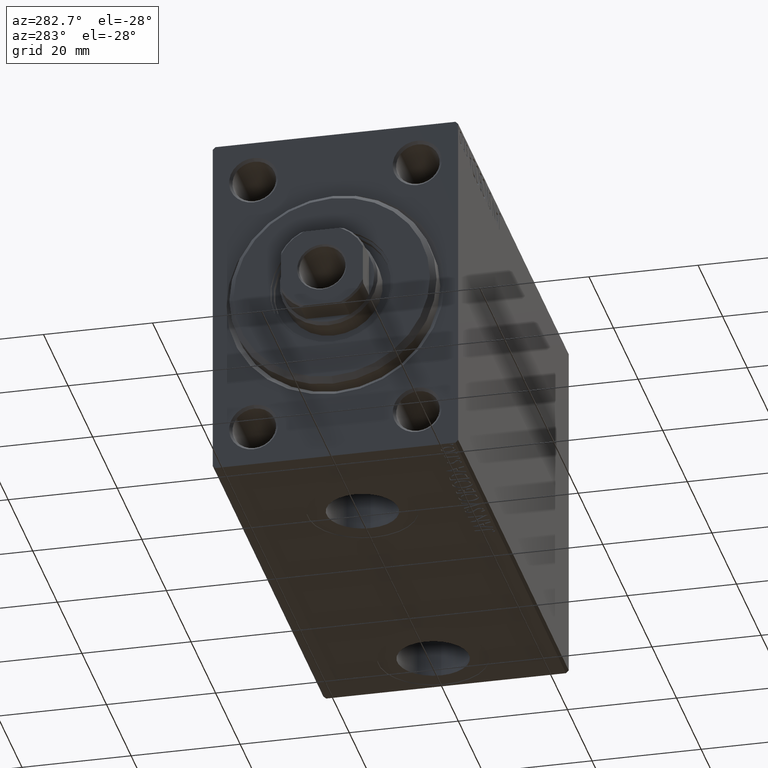
[diagram: clean part render]
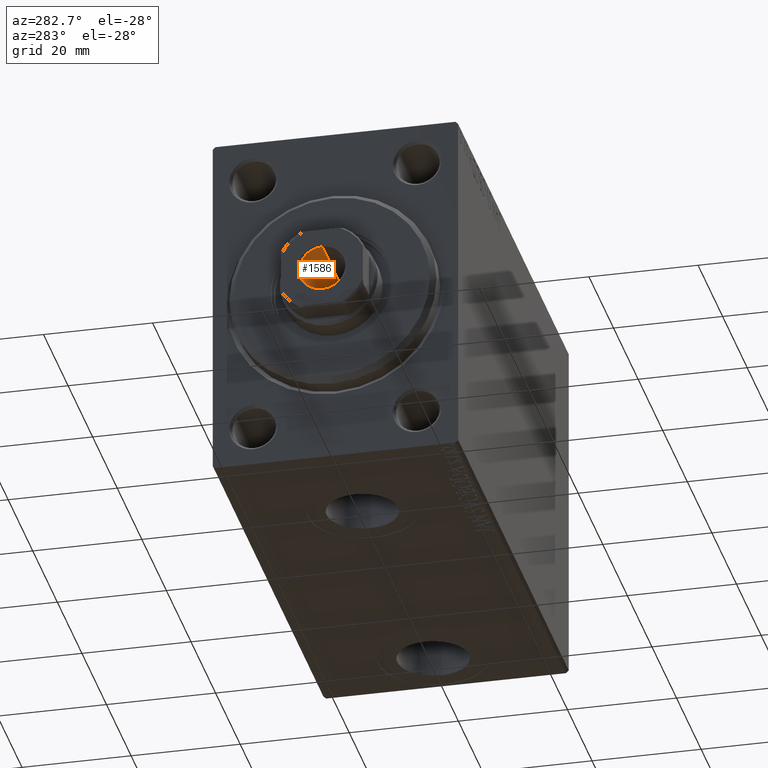
[diagram: same view with one face highlighted and labeled with its STEP entity id]
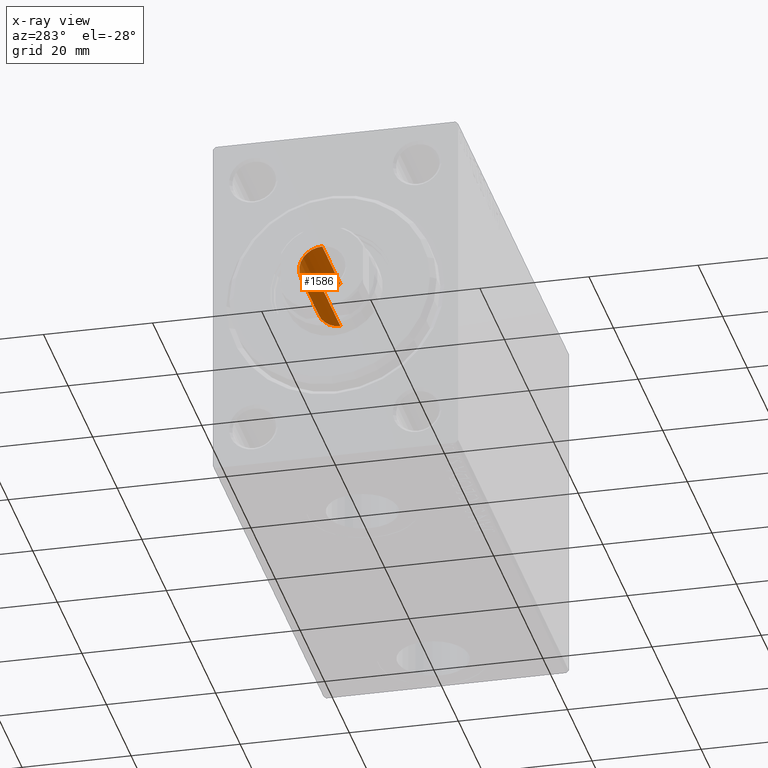
[diagram: x-ray of the same camera — body ghosted, the highlighted face saturated]
A machine part, auxiliary view. The second image highlights one B-rep face of the part: STEP entity #1586.
The next image is the same camera in x-ray: the body ghosted, the highlighted face saturated — about 2% of this face is hidden behind the body in this view.
In plain terms, the highlighted cylindrical surface (edge-blend (fillet) strip) has radius 4.25 mm, axis along (-1, 0, 0).
Its self-contained STEP definition (entity closure, byte-faithful):
#1586 = ADVANCED_FACE ( 'NONE', ( #25253 ), #42762, .F. ) ;
#3167 = ORIENTED_EDGE ( 'NONE', *, *, #31401, .F. ) ;
#3942 = EDGE_CURVE ( 'NONE', #10553, #25044, #42862, .T. ) ;
#5468 = AXIS2_PLACEMENT_3D ( 'NONE', #13513, #9370, #10060 ) ;
#6206 = CIRCLE ( 'NONE', #5468, 4.249999999999997335 ) ;
#7504 = CARTESIAN_POINT ( 'NONE',  ( 0.000000000000000000, 0.000000000000000000, 95.00000000000000000 ) ) ;
#8772 = DIRECTION ( 'NONE',  ( 1.000000000000000000, 0.000000000000000000, 0.000000000000000000 ) ) ;
#9370 = DIRECTION ( 'NONE',  ( 0.000000000000000000, 0.000000000000000000, 1.000000000000000000 ) ) ;
#10060 = DIRECTION ( 'NONE',  ( 1.000000000000000000, 0.000000000000000000, 0.000000000000000000 ) ) ;
#10553 = VERTEX_POINT ( 'NONE', #33059 ) ;
#11212 = CARTESIAN_POINT ( 'NONE',  ( -4.249999999999996447, 5.204748896376247741E-16, 80.00000000000000000 ) ) ;
#11991 = VECTOR ( 'NONE', #17500, 1000.000000000000000 ) ;
#12006 = CARTESIAN_POINT ( 'NONE',  ( 0.000000000000000000, 0.000000000000000000, 80.00000000000000000 ) ) ;
#13513 = CARTESIAN_POINT ( 'NONE',  ( 0.000000000000000000, 0.000000000000000000, 94.69999999999998863 ) ) ;
#13673 = EDGE_LOOP ( 'NONE', ( #21616, #3167, #35822, #36193 ) ) ;
#16842 = VERTEX_POINT ( 'NONE', #33622 ) ;
#17500 = DIRECTION ( 'NONE',  ( -0.000000000000000000, -0.000000000000000000, 1.000000000000000000 ) ) ;
#17999 = DIRECTION ( 'NONE',  ( -0.000000000000000000, -0.000000000000000000, 1.000000000000000000 ) ) ;
#20425 = VECTOR ( 'NONE', #17999, 1000.000000000000000 ) ;
#21616 = ORIENTED_EDGE ( 'NONE', *, *, #24426, .F. ) ;
#24426 = EDGE_CURVE ( 'NONE', #26416, #16842, #38906, .T. ) ;
#25044 = VERTEX_POINT ( 'NONE', #28191 ) ;
#25253 = FACE_OUTER_BOUND ( 'NONE', #13673, .T. ) ;
#26416 = VERTEX_POINT ( 'NONE', #11212 ) ;
#28191 = CARTESIAN_POINT ( 'NONE',  ( 4.249999999999997335, 0.000000000000000000, 94.69999999999998863 ) ) ;
#31401 = EDGE_CURVE ( 'NONE', #10553, #26416, #34769, .T. ) ;
#33059 = CARTESIAN_POINT ( 'NONE',  ( 4.249999999999996447, 0.000000000000000000, 80.00000000000000000 ) ) ;
#33622 = CARTESIAN_POINT ( 'NONE',  ( -4.249999999999997335, 5.204748896376248727E-16, 94.69999999999998863 ) ) ;
#34769 = CIRCLE ( 'NONE', #36238, 4.249999999999996447 ) ;
#35633 = DIRECTION ( 'NONE',  ( -0.000000000000000000, -0.000000000000000000, 1.000000000000000000 ) ) ;
#35822 = ORIENTED_EDGE ( 'NONE', *, *, #3942, .T. ) ;
#36193 = ORIENTED_EDGE ( 'NONE', *, *, #36636, .T. ) ;
#36238 = AXIS2_PLACEMENT_3D ( 'NONE', #12006, #40348, #8772 ) ;
#36636 = EDGE_CURVE ( 'NONE', #25044, #16842, #6206, .T. ) ;
#38727 = CARTESIAN_POINT ( 'NONE',  ( 4.249999999999997335, 0.000000000000000000, 95.00000000000000000 ) ) ;
#38906 = LINE ( 'NONE', #43040, #11991 ) ;
#40348 = DIRECTION ( 'NONE',  ( -0.000000000000000000, -0.000000000000000000, 1.000000000000000000 ) ) ;
#42305 = DIRECTION ( 'NONE',  ( 1.000000000000000000, 0.000000000000000000, 0.000000000000000000 ) ) ;
#42762 = CYLINDRICAL_SURFACE ( 'NONE', #43878, 4.249999999999997335 ) ;
#42862 = LINE ( 'NONE', #38727, #20425 ) ;
#43040 = CARTESIAN_POINT ( 'NONE',  ( -4.249999999999997335, 5.204748896376248727E-16, 95.00000000000000000 ) ) ;
#43878 = AXIS2_PLACEMENT_3D ( 'NONE', #7504, #35633, #42305 ) ;